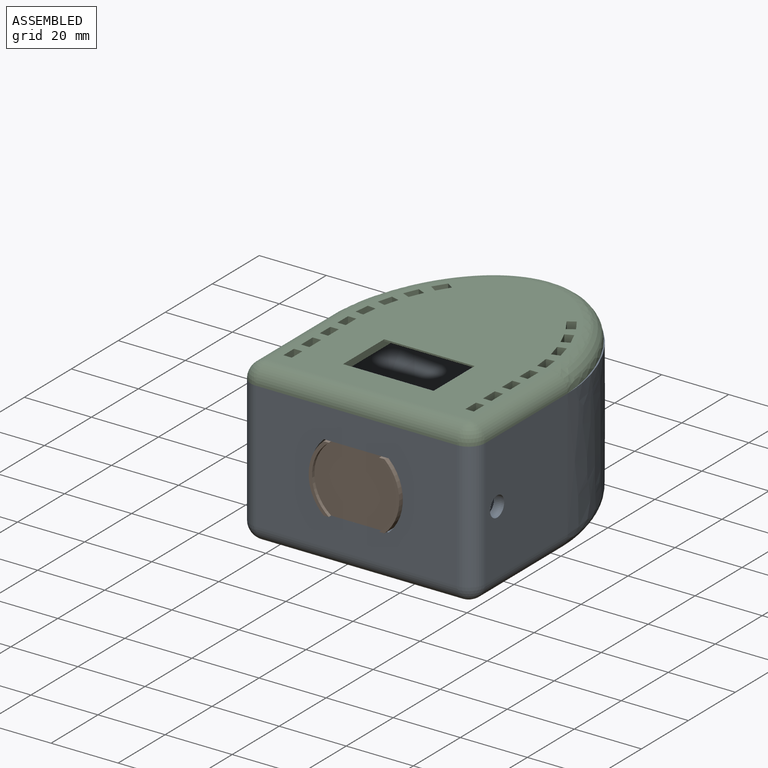
[diagram: assembled view]
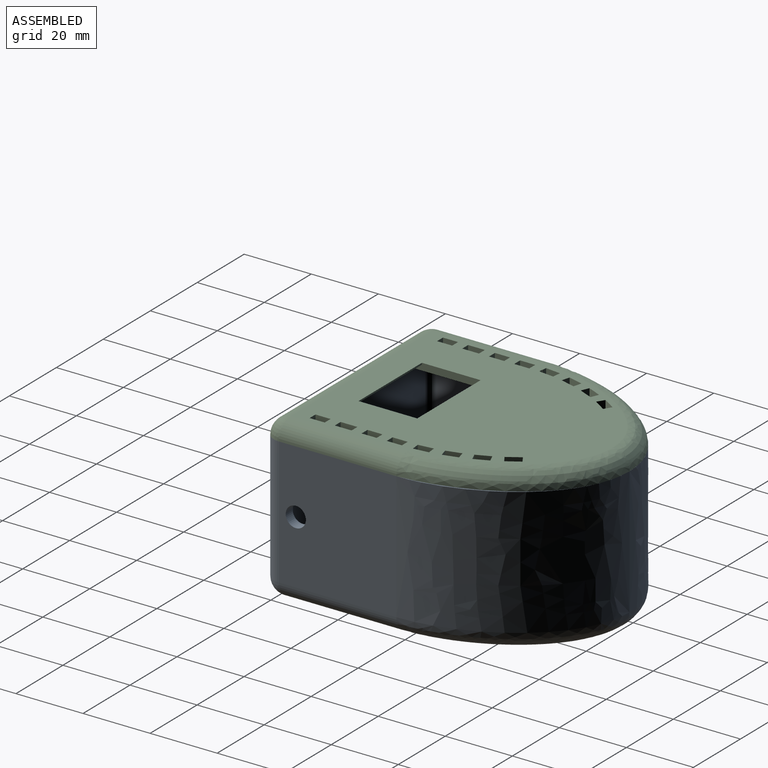
[diagram: assembled view, second angle]
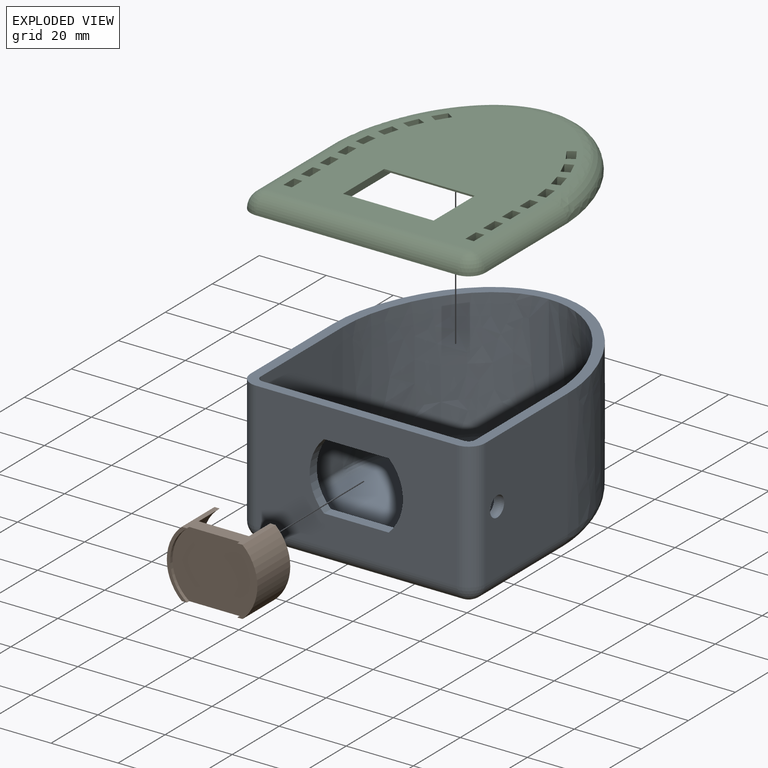
[diagram: exploded view]
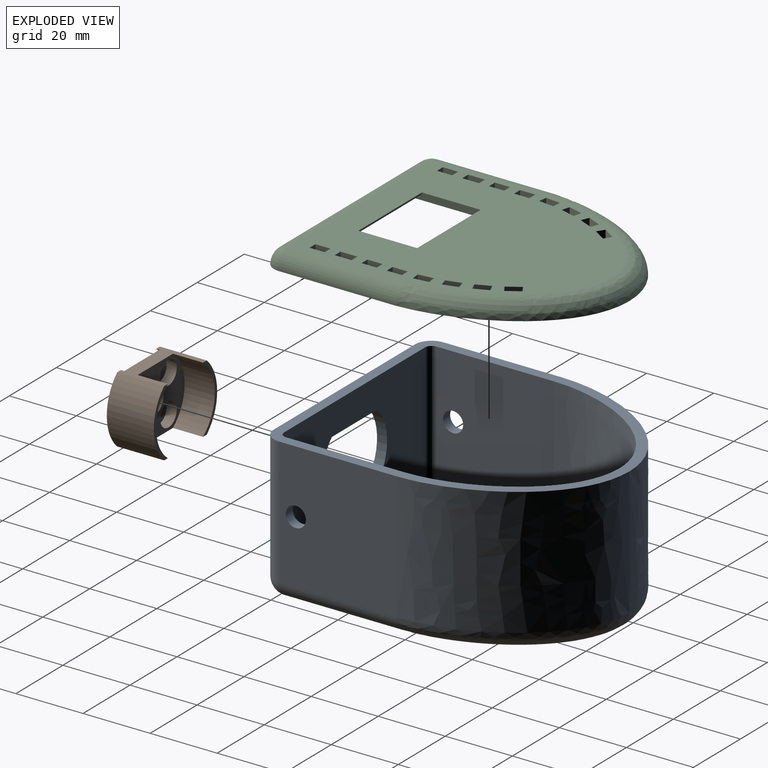
[diagram: exploded view, second angle]
ASSEMBLY  parts=3 mates=2
PART A: 42 faces, bbox 74.5x89.5x47.5 mm
  f0: plane 60x38mm, normal (0,-1,0), area 1776.6mm2, adj f12,f13,f15,f16,f36,f37,f38,f39
  f1: plane 60x38mm, normal (0,1,0), area 1776.6mm2, adj f16,f27,f28,f30,f36,f37,f38,f39
  f2: extruded ~45x38mm, area 2373.3mm2, adj f3,f5,f9,f16
  f3: extruded ~45x38mm, area 2373.3mm2, adj f2,f4,f7,f16
  f4: plane 38x35mm, normal (-1,0,0), area 1301.7mm2, adj f3,f8,f13,f16,f40
  f5: plane 38x35mm, normal (1,0,0), area 1301.7mm2, adj f2,f11,f15,f16,f41
  f6: plane 75x60mm, normal (0,0,-1), area 3034.6mm2, adj f7,f8,f9,f11,f12,f31,f32,f33
  f7: bspline ~59.74x49.74mm, area 468.1mm2, adj f3,f6,f8,f9
  f8: cylinder r=5mm len=35mm, axis (0,-1,0), area 274.9mm2, adj f4,f6,f7,f10
  f9: bspline ~59.74x49.74mm, area 468.1mm2, adj f2,f6,f7,f11
  f10: sphere r=5mm, area 39.3mm2, adj f8,f12,f13
  f11: cylinder r=5mm len=35mm, axis (0,1,0), area 274.9mm2, adj f5,f6,f9,f14
  f12: cylinder r=5mm len=60mm, axis (1,0,0), area 471.2mm2, adj f0,f6,f10,f14
  f13: cylinder r=5mm len=38mm, axis (0,0,-1), area 298.5mm2, adj f0,f4,f10,f16
  f14: sphere r=5mm, area 39.3mm2, adj f11,f12,f15
  f15: cylinder r=5mm len=38mm, axis (0,0,1), area 298.5mm2, adj f0,f5,f14,f16
  f16: plane 89.51x74.51mm, normal (0,0,1), area 783.6mm2, adj f0,f1,f2,f3,f4,f5,f13,f15
  f17: extruded ~42x38mm, area 2194.2mm2, adj f16,f18,f20,f24
  f18: extruded ~42x38mm, area 2194.2mm2, adj f16,f17,f19,f22
  f19: plane 38x35mm, normal (1,0,0), area 1301.7mm2, adj f16,f18,f23,f28,f40
  f20: plane 38x35mm, normal (-1,0,0), area 1301.7mm2, adj f16,f17,f26,f30,f41
  f21: plane 75x60mm, normal (0,0,1), area 3934.6mm2, adj f22,f23,f24,f26,f27
  f22: bspline ~56.74x46.74mm, area 177.8mm2, adj f18,f21,f23,f24
  f23: cylinder r=2mm len=35mm, axis (0,-1,0), area 110mm2, adj f19,f21,f22,f25
  f24: bspline ~56.74x46.74mm, area 177.8mm2, adj f17,f21,f22,f26
  f25: sphere r=2mm, area 6.3mm2, adj f23,f27,f28
  f26: cylinder r=2mm len=35mm, axis (0,1,0), area 110mm2, adj f20,f21,f24,f29
  f27: cylinder r=2mm len=60mm, axis (1,0,0), area 188.5mm2, adj f1,f21,f25,f29
  f28: cylinder r=2mm len=38mm, axis (0,0,-1), area 119.4mm2, adj f1,f16,f19,f25
  f29: sphere r=2mm, area 6.3mm2, adj f26,f27,f30
  f30: cylinder r=2mm len=38mm, axis (0,0,1), area 119.4mm2, adj f1,f16,f20,f29
  f31: plane 37.5x2mm, normal (1,0,0), area 75mm2, adj f6,f32,f34,f35
  f32: plane 24x2mm, normal (0,-1,0), area 48mm2, adj f6,f31,f33,f35
  f33: plane 37.5x2mm, normal (-1,0,0), area 75mm2, adj f6,f32,f34,f35
  f34: plane 24x2mm, normal (0,1,0), area 48mm2, adj f6,f31,f33,f35
  f35: plane 37.5x24mm, normal (0,0,-1), area 900mm2, adj f31,f32,f33,f34
  f36: plane 19.31x3mm, normal (0,0,-1), area 57.9mm2, adj f0,f1,f37,f39
  f37: cylinder r=13.9mm len=20mm, axis (0,-1,0), area 67mm2, adj f0,f1,f36,f38
  f38: plane 19.31x3mm, normal (0,0,1), area 57.9mm2, adj f0,f1,f37,f39
  f39: cylinder r=13.9mm len=20mm, axis (0,-1,0), area 67mm2, adj f0,f1,f36,f38
  f40: cylinder r=3mm len=6mm, axis (-1,0,0), area 56.5mm2, adj f4,f19
  f41: cylinder r=3mm len=6mm, axis (1,0,0), area 56.5mm2, adj f5,f20
PART B: 24 faces, bbox 27x14x20 mm
  f0: plane 18.14x14mm, normal (0,0,-1), area 103.9mm2, adj f7,f8,f14,f15,f16,f17,f18,f19
  f1: cylinder r=3.5mm len=7mm, axis (0,-1,0), area 66mm2, adj f7,f11
  f2: cylinder r=3.5mm len=7mm, axis (0,-1,0), area 66mm2, adj f7,f13
  f3: cylinder r=3.5mm len=7mm, axis (0,-1,0), area 66mm2, adj f7,f9
  f4: plane 18.14x14mm, normal (0,0,1), area 103.9mm2, adj f7,f8,f14,f15,f16,f17,f18,f19
  f5: cylinder r=3.5mm len=7mm, axis (0,-1,0), area 66mm2, adj f7,f10
  f6: cylinder r=3.5mm len=7mm, axis (0,-1,0), area 66mm2, adj f7,f12
  f7: plane 25x20mm, normal (0,1,0), area 247.4mm2, adj f0,f1,f2,f3,f4,f5,f6,f15
  f8: plane 25x20mm, normal (0,-1,0), area 439.8mm2, adj f0,f4,f14,f19
  f9: plane 7x7mm, normal (0,1,0), area 38.5mm2, adj f3
  f10: plane 7x7mm, normal (0,1,0), area 38.5mm2, adj f5
  f11: plane 7x7mm, normal (0,1,0), area 38.5mm2, adj f1
  f12: plane 7x7mm, normal (0,1,0), area 38.5mm2, adj f6
  f13: plane 7x7mm, normal (0,1,0), area 38.5mm2, adj f2
  f14: cylinder r=12.5mm len=20mm, axis (0,1,0), area 23.2mm2, adj f0,f4,f8,f17
  f15: cylinder r=12.5mm len=20mm, axis (0,1,0), area 208.6mm2, adj f0,f4,f7,f18
  f16: cylinder r=13.5mm len=20mm, axis (0,1,0), area 315.3mm2, adj f0,f4,f17,f18
  f17: plane 20x6mm, normal (0,-1,0), area 22.8mm2, adj f0,f4,f14,f16
  f18: plane 20x6mm, normal (0,1,0), area 22.8mm2, adj f0,f4,f15,f16
  f19: cylinder r=12.5mm len=20mm, axis (0,1,0), area 23.2mm2, adj f0,f4,f8,f22
  f20: cylinder r=13.5mm len=20mm, axis (0,1,0), area 315.3mm2, adj f0,f4,f22,f23
  f21: cylinder r=12.5mm len=20mm, axis (0,1,0), area 208.6mm2, adj f0,f4,f7,f23
  f22: plane 20x6mm, normal (0,-1,0), area 22.8mm2, adj f0,f4,f19,f20
  f23: plane 20x6mm, normal (0,1,0), area 22.8mm2, adj f0,f4,f20,f21
PART C: 89 faces, bbox 75.2x90.1x10.1 mm
  f0: plane 33x2.1mm, normal (1,0,0), area 61.6mm2, adj f2,f3,f73,f74,f75,f76,f77,f81
  f1: plane 90.12x75.12mm, normal (0,0,-1), area 3586.1mm2, adj f4,f5,f6,f7,f8,f9,f10,f11
  f2: plane 27x0.5mm, normal (0,1,0), area 13.5mm2, adj f0,f72,f73,f77
  f3: plane 27x0.5mm, normal (0,-1,0), area 13.5mm2, adj f0,f72,f73,f75
  f4: plane 5x2.49mm, normal (-0.11,0.99,0), area 12.5mm2, adj f1,f5,f56,f73
  f5: plane 5x4.47mm, normal (0.99,0.11,0), area 22.5mm2, adj f1,f4,f6,f73
  f6: plane 5x2.49mm, normal (0.11,-0.99,0), area 12.5mm2, adj f1,f5,f56,f73
  f7: plane 5x4.34mm, normal (-0.97,-0.26,0), area 22.5mm2, adj f1,f8,f57,f73
  f8: plane 5x2.41mm, normal (-0.27,0.96,0), area 12.5mm2, adj f1,f7,f9,f73
  f9: plane 5x4.34mm, normal (0.97,0.26,0), area 22.5mm2, adj f1,f8,f57,f73
  f10: plane 5x2.11mm, normal (-0.54,0.84,0), area 12.5mm2, adj f1,f11,f58,f73
  f11: plane 5x3.8mm, normal (0.84,0.54,0), area 22.5mm2, adj f1,f10,f12,f73
  f12: plane 5x2.11mm, normal (0.54,-0.84,0), area 12.5mm2, adj f1,f11,f58,f73
  f13: plane 5x4.13mm, normal (-0.92,-0.4,0), area 22.5mm2, adj f1,f14,f59,f73
  f14: plane 5x2.29mm, normal (-0.4,0.92,0), area 12.5mm2, adj f1,f13,f15,f73
  f15: plane 5x4.13mm, normal (0.92,0.4,0), area 22.5mm2, adj f1,f14,f59,f73
  f16: plane 5x2.11mm, normal (-0.54,-0.84,0), area 12.5mm2, adj f1,f17,f60,f73
  f17: plane 5x3.8mm, normal (-0.84,0.54,0), area 22.5mm2, adj f1,f16,f18,f73
  f18: plane 5x2.11mm, normal (0.54,0.84,0), area 12.5mm2, adj f1,f17,f60,f73
  f19: plane 5x2.29mm, normal (-0.4,-0.92,0), area 12.5mm2, adj f1,f20,f61,f73
  f20: plane 5x4.13mm, normal (-0.92,0.4,0), area 22.5mm2, adj f1,f19,f21,f73
  f21: plane 5x2.29mm, normal (0.4,0.92,0), area 12.5mm2, adj f1,f20,f61,f73
  f22: plane 5x2.41mm, normal (-0.27,-0.96,0), area 12.5mm2, adj f1,f23,f62,f73
  f23: plane 5x4.34mm, normal (-0.97,0.26,0), area 22.5mm2, adj f1,f22,f24,f73
  f24: plane 5x2.41mm, normal (0.27,0.96,0), area 12.5mm2, adj f1,f23,f62,f73
  f25: plane 5x2.49mm, normal (-0.11,-0.99,0), area 12.5mm2, adj f1,f26,f63,f73
  f26: plane 5x4.47mm, normal (-0.99,0.11,0), area 22.5mm2, adj f1,f25,f27,f73
  f27: plane 5x0.01mm, normal (0.11,0.99,0), area 0.1mm2, adj f1,f26,f28,f73
  f28: plane 5x1.09mm, normal (0,1,0), area 5.4mm2, adj f1,f27,f29,f73
  f29: plane 5x0.03mm, normal (1,0,0), area 0.1mm2, adj f1,f28,f30,f73
  f30: extruded ~5x0.09mm, area 0.4mm2, adj f1,f29,f31,f73
  f31: plane 5x1.39mm, normal (0.11,0.99,0), area 7mm2, adj f1,f30,f63,f73
  f32: plane 5x2.5mm, normal (0,-1,0), area 12.5mm2, adj f1,f33,f64,f73
  f33: plane 5x4.5mm, normal (-1,0,0), area 22.5mm2, adj f1,f32,f34,f73
  f34: plane 5x2.5mm, normal (0,1,0), area 12.5mm2, adj f1,f33,f64,f73
  f35: plane 5x2.5mm, normal (0,-1,0), area 12.5mm2, adj f1,f36,f65,f73
  f36: plane 5x4.5mm, normal (-1,0,0), area 22.5mm2, adj f1,f35,f37,f73
  f37: plane 5x2.5mm, normal (0,1,0), area 12.5mm2, adj f1,f36,f65,f73
  f38: plane 5x2.5mm, normal (0,-1,0), area 12.5mm2, adj f1,f39,f66,f73
  f39: plane 5x5mm, normal (-1,0,0), area 25mm2, adj f1,f38,f40,f73
  f40: plane 5x2.5mm, normal (0,1,0), area 12.5mm2, adj f1,f39,f66,f73
  f41: plane 5x2.5mm, normal (0,-1,0), area 12.5mm2, adj f1,f42,f67,f73
  f42: plane 5x4.5mm, normal (-1,0,0), area 22.5mm2, adj f1,f41,f43,f73
  f43: plane 5x2.5mm, normal (0,1,0), area 12.5mm2, adj f1,f42,f67,f73
  f44: plane 5x4.5mm, normal (1,0,0), area 22.5mm2, adj f1,f45,f68,f73
  f45: plane 5x2.5mm, normal (0,-1,0), area 12.5mm2, adj f1,f44,f46,f73
  f46: plane 5x4.5mm, normal (-1,0,0), area 22.5mm2, adj f1,f45,f68,f73
  f47: plane 5x5mm, normal (1,0,0), area 25mm2, adj f1,f48,f69,f73
  f48: plane 5x2.5mm, normal (0,-1,0), area 12.5mm2, adj f1,f47,f49,f73
  f49: plane 5x5mm, normal (-1,0,0), area 25mm2, adj f1,f48,f69,f73
  f50: plane 5x4.5mm, normal (1,0,0), area 22.5mm2, adj f1,f51,f70,f73
  f51: plane 5x2.5mm, normal (0,-1,0), area 12.5mm2, adj f1,f50,f52,f73
  f52: plane 5x4.5mm, normal (-1,0,0), area 22.5mm2, adj f1,f51,f70,f73
  f53: plane 5x4.5mm, normal (1,0,0), area 22.5mm2, adj f1,f54,f71,f73
  f54: plane 5x2.5mm, normal (0,-1,0), area 12.5mm2, adj f1,f53,f55,f73
  f55: plane 5x4.5mm, normal (-1,0,0), area 22.5mm2, adj f1,f54,f71,f73
  f56: plane 5x4.47mm, normal (-0.99,-0.11,0), area 22.5mm2, adj f1,f4,f6,f73
  f57: plane 5x2.41mm, normal (0.27,-0.96,0), area 12.5mm2, adj f1,f7,f9,f73
  f58: plane 5x3.8mm, normal (-0.84,-0.54,0), area 22.5mm2, adj f1,f10,f12,f73
  f59: plane 5x2.29mm, normal (0.4,-0.92,0), area 12.5mm2, adj f1,f13,f15,f73
  f60: plane 5x3.8mm, normal (0.84,-0.54,0), area 22.5mm2, adj f1,f16,f18,f73
  f61: plane 5x4.13mm, normal (0.92,-0.4,0), area 22.5mm2, adj f1,f19,f21,f73
  f62: plane 5x4.34mm, normal (0.97,-0.26,0), area 22.5mm2, adj f1,f22,f24,f73
  f63: plane 5x4.47mm, normal (0.99,-0.11,0), area 22.5mm2, adj f1,f25,f31,f73
  f64: plane 5x4.5mm, normal (1,0,0), area 22.5mm2, adj f1,f32,f34,f73
  f65: plane 5x4.5mm, normal (1,0,0), area 22.5mm2, adj f1,f35,f37,f73
  f66: plane 5x5mm, normal (1,0,0), area 25mm2, adj f1,f38,f40,f73
  f67: plane 5x4.5mm, normal (1,0,0), area 22.5mm2, adj f1,f41,f43,f73
  f68: plane 5x2.5mm, normal (0,1,0), area 12.5mm2, adj f1,f44,f46,f73
  f69: plane 5x2.5mm, normal (0,1,0), area 12.5mm2, adj f1,f47,f49,f73
  f70: plane 5x2.5mm, normal (0,1,0), area 12.5mm2, adj f1,f50,f52,f73
  f71: plane 5x2.5mm, normal (0,1,0), area 12.5mm2, adj f1,f53,f55,f73
  f72: plane 33x2.1mm, normal (-1,0,0), area 61.6mm2, adj f2,f3,f73,f74,f75,f76,f77,f79
  f73: plane 75x60.01mm, normal (0,0,1), area 3260.1mm2, adj f0,f2,f3,f4,f5,f6,f7,f8
  f74: plane 43x4.5mm, normal (0,-1,0), area 167.9mm2, adj f0,f1,f72,f75,f78,f79,f80,f81
  f75: plane 27x8.85mm, normal (0,0,-1), area 238.9mm2, adj f0,f3,f72,f74
  f76: plane 43x4.5mm, normal (0,1,0), area 167.9mm2, adj f0,f1,f72,f77,f78,f79,f80,f81
  f77: plane 27x6.65mm, normal (0,0,-1), area 179.6mm2, adj f0,f2,f72,f76
  f78: plane 33x2.9mm, normal (-1,0,0), area 95.7mm2, adj f1,f74,f76,f79
  f79: plane 33x8mm, normal (0,0,-1), area 264mm2, adj f72,f74,f76,f78
  f80: plane 33x2.9mm, normal (1,0,0), area 95.7mm2, adj f1,f74,f76,f81
  f81: plane 33x8mm, normal (0,0,-1), area 264mm2, adj f0,f74,f76,f80
  f82: sphere r=5mm, area 39.3mm2, adj f1,f83,f84
  f83: cylinder r=5mm len=60mm, axis (-1,0,0), area 471.2mm2, adj f1,f73,f82,f85
  f84: cylinder r=5mm len=35mm, axis (0,-1,0), area 274.4mm2, adj f1,f73,f82,f86
  f85: sphere r=5mm, area 39.3mm2, adj f1,f83,f87
  f86: bspline ~49.87x45.63mm, area 466.7mm2, adj f1,f73,f84,f88
  f87: cylinder r=5mm len=35mm, axis (0,1,0), area 274.4mm2, adj f1,f73,f85,f88
  f88: bspline ~49.87x45.63mm, area 466.7mm2, adj f1,f73,f86,f87
PLACE A t=(7.54,20.5,19.49)mm
PLACE B rot(axis=(0,1,0),180deg) t=(7.54,-20.79,19.49)mm
PLACE C t=(7.54,19.21,38.49)mm
MATE fastened C.f1 <-> A.f16  axis (0,0,-1) through (37.54,-20.79,38.49)mm
MATE fastened B.f4 <-> A.f38  axis (0,0,-1) through (7.54,-20.79,9.49)mm
